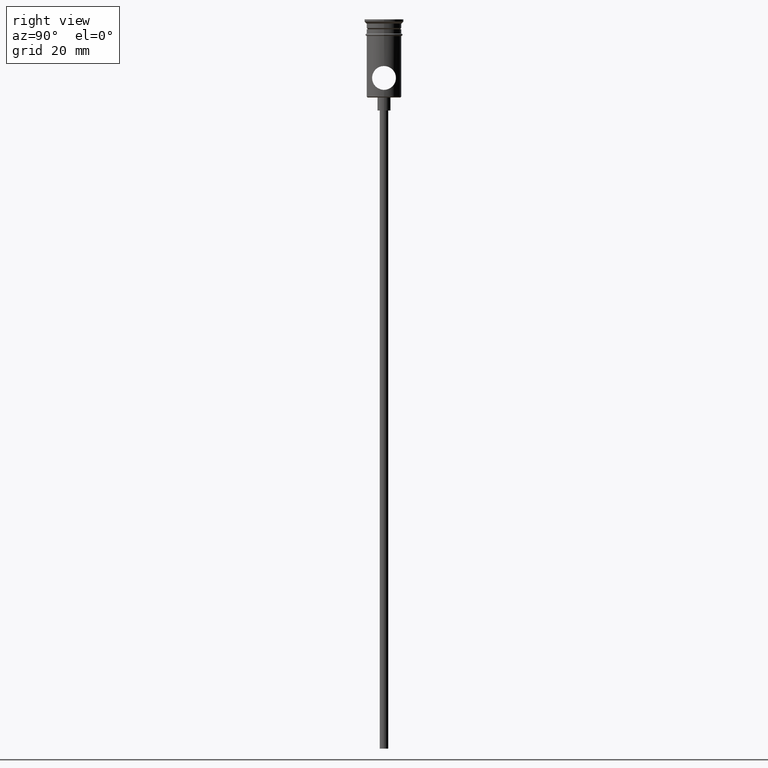
[diagram: clean part render]
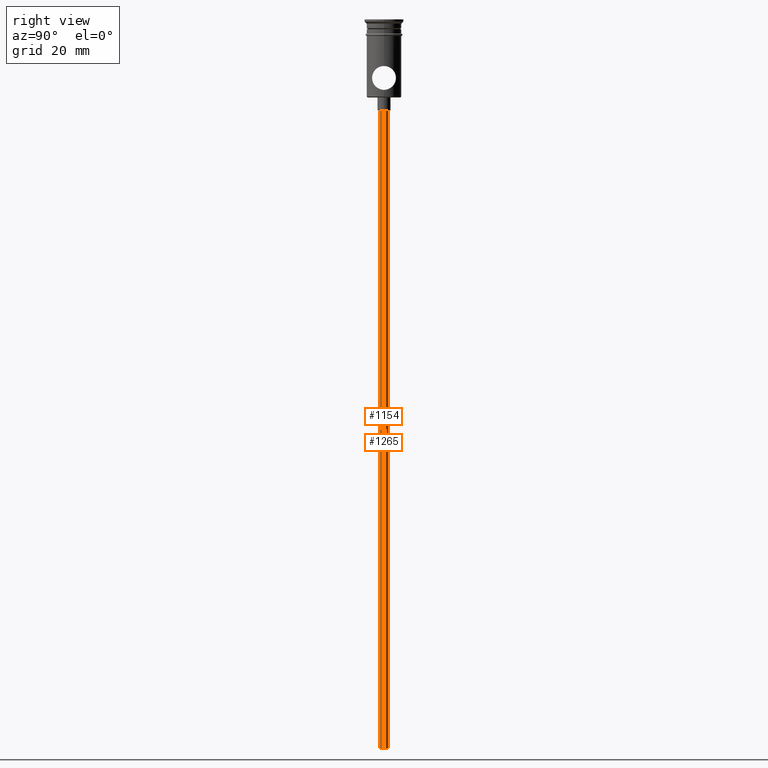
[diagram: same view with one multi-face feature highlighted, each face labeled with its STEP entity id]
A machine part, right view. The highlighted faces form ONE feature: a constant-radius fillet chain: 2 tangent blend faces with common blend radius 1 mm. The faces share edges in the B-rep.
Their STEP definitions:
[1] entity #1154 (Cylinder):
#107 = DIRECTION ( 'NONE',  ( 0.000000000000000000, 0.000000000000000000, -1.000000000000000000 ) ) ;
#109 = ORIENTED_EDGE ( 'NONE', *, *, #392, .F. ) ;
#122 = CARTESIAN_POINT ( 'NONE',  ( 0.9999999999999997780, 0.000000000000000000, -167.9999999999999716 ) ) ;
#127 = DIRECTION ( 'NONE',  ( -1.000000000000000000, 0.000000000000000000, 0.000000000000000000 ) ) ;
#171 = VERTEX_POINT ( 'NONE', #827 ) ;
#231 = EDGE_CURVE ( 'NONE', #171, #720, #348, .T. ) ;
#249 = FACE_OUTER_BOUND ( 'NONE', #577, .T. ) ;
#267 = EDGE_CURVE ( 'NONE', #1340, #906, #503, .T. ) ;
#348 = LINE ( 'NONE', #122, #1254 ) ;
#353 = DIRECTION ( 'NONE',  ( 1.000000000000000000, 0.000000000000000000, 0.000000000000000000 ) ) ;
#355 = DIRECTION ( 'NONE',  ( -1.000000000000000000, 0.000000000000000000, 0.000000000000000000 ) ) ;
#392 = EDGE_CURVE ( 'NONE', #171, #1340, #1176, .T. ) ;
#407 = AXIS2_PLACEMENT_3D ( 'NONE', #1067, #107, #127 ) ;
#503 = LINE ( 'NONE', #1038, #1058 ) ;
#577 = EDGE_LOOP ( 'NONE', ( #657, #109, #1196, #1155 ) ) ;
#600 = AXIS2_PLACEMENT_3D ( 'NONE', #902, #1345, #353 ) ;
#657 = ORIENTED_EDGE ( 'NONE', *, *, #267, .F. ) ;
#684 = EDGE_CURVE ( 'NONE', #720, #906, #865, .T. ) ;
#691 = CYLINDRICAL_SURFACE ( 'NONE', #600, 0.9999999999999997780 ) ;
#720 = VERTEX_POINT ( 'NONE', #904 ) ;
#827 = CARTESIAN_POINT ( 'NONE',  ( 0.9999999999999997780, 0.000000000000000000, -167.9999999999999716 ) ) ;
#862 = DIRECTION ( 'NONE',  ( -0.000000000000000000, -0.000000000000000000, 1.000000000000000000 ) ) ;
#865 = CIRCLE ( 'NONE', #1351, 0.9999999999999997780 ) ;
#902 = CARTESIAN_POINT ( 'NONE',  ( 0.000000000000000000, 0.000000000000000000, -167.9999999999999716 ) ) ;
#904 = CARTESIAN_POINT ( 'NONE',  ( 0.9999999999999997780, 0.000000000000000000, -20.99999999999999645 ) ) ;
#906 = VERTEX_POINT ( 'NONE', #1405 ) ;
#1038 = CARTESIAN_POINT ( 'NONE',  ( -0.9999999999999997780, 1.224646799147352961E-16, -167.9999999999999716 ) ) ;
#1058 = VECTOR ( 'NONE', #1373, 1000.000000000000000 ) ;
#1067 = CARTESIAN_POINT ( 'NONE',  ( 0.000000000000000000, 0.000000000000000000, -167.9999999999999716 ) ) ;
#1147 = CARTESIAN_POINT ( 'NONE',  ( -0.9999999999999997780, 1.224646799147352961E-16, -167.9999999999999716 ) ) ;
#1154 = ADVANCED_FACE ( 'NONE', ( #249 ), #691, .T. ) ;
#1155 = ORIENTED_EDGE ( 'NONE', *, *, #684, .T. ) ;
#1176 = CIRCLE ( 'NONE', #407, 0.9999999999999997780 ) ;
#1196 = ORIENTED_EDGE ( 'NONE', *, *, #231, .T. ) ;
#1244 = CARTESIAN_POINT ( 'NONE',  ( 0.000000000000000000, 0.000000000000000000, -20.99999999999999645 ) ) ;
#1254 = VECTOR ( 'NONE', #862, 1000.000000000000000 ) ;
#1340 = VERTEX_POINT ( 'NONE', #1147 ) ;
#1345 = DIRECTION ( 'NONE',  ( -0.000000000000000000, -0.000000000000000000, 1.000000000000000000 ) ) ;
#1351 = AXIS2_PLACEMENT_3D ( 'NONE', #1244, #1380, #355 ) ;
#1373 = DIRECTION ( 'NONE',  ( -0.000000000000000000, -0.000000000000000000, 1.000000000000000000 ) ) ;
#1380 = DIRECTION ( 'NONE',  ( 0.000000000000000000, 0.000000000000000000, -1.000000000000000000 ) ) ;
#1405 = CARTESIAN_POINT ( 'NONE',  ( -0.9999999999999997780, 1.224646799147352961E-16, -20.99999999999999645 ) ) ;
[2] entity #1265 (Cylinder):
#37 = CARTESIAN_POINT ( 'NONE',  ( 0.000000000000000000, 0.000000000000000000, -167.9999999999999716 ) ) ;
#106 = ORIENTED_EDGE ( 'NONE', *, *, #650, .F. ) ;
#122 = CARTESIAN_POINT ( 'NONE',  ( 0.9999999999999997780, 0.000000000000000000, -167.9999999999999716 ) ) ;
#163 = CARTESIAN_POINT ( 'NONE',  ( 0.000000000000000000, 0.000000000000000000, -20.99999999999999645 ) ) ;
#167 = FACE_OUTER_BOUND ( 'NONE', #612, .T. ) ;
#171 = VERTEX_POINT ( 'NONE', #827 ) ;
#178 = CARTESIAN_POINT ( 'NONE',  ( 0.000000000000000000, 0.000000000000000000, -167.9999999999999716 ) ) ;
#197 = ORIENTED_EDGE ( 'NONE', *, *, #504, .T. ) ;
#231 = EDGE_CURVE ( 'NONE', #171, #720, #348, .T. ) ;
#258 = DIRECTION ( 'NONE',  ( 0.000000000000000000, 0.000000000000000000, -1.000000000000000000 ) ) ;
#267 = EDGE_CURVE ( 'NONE', #1340, #906, #503, .T. ) ;
#301 = CIRCLE ( 'NONE', #947, 0.9999999999999997780 ) ;
#348 = LINE ( 'NONE', #122, #1254 ) ;
#419 = DIRECTION ( 'NONE',  ( -1.000000000000000000, 0.000000000000000000, 0.000000000000000000 ) ) ;
#503 = LINE ( 'NONE', #1038, #1058 ) ;
#504 = EDGE_CURVE ( 'NONE', #906, #720, #734, .T. ) ;
#553 = AXIS2_PLACEMENT_3D ( 'NONE', #178, #831, #1383 ) ;
#609 = DIRECTION ( 'NONE',  ( 0.000000000000000000, 0.000000000000000000, -1.000000000000000000 ) ) ;
#612 = EDGE_LOOP ( 'NONE', ( #106, #1344, #197, #1140 ) ) ;
#642 = AXIS2_PLACEMENT_3D ( 'NONE', #163, #609, #1116 ) ;
#650 = EDGE_CURVE ( 'NONE', #1340, #171, #301, .T. ) ;
#720 = VERTEX_POINT ( 'NONE', #904 ) ;
#734 = CIRCLE ( 'NONE', #642, 0.9999999999999997780 ) ;
#827 = CARTESIAN_POINT ( 'NONE',  ( 0.9999999999999997780, 0.000000000000000000, -167.9999999999999716 ) ) ;
#831 = DIRECTION ( 'NONE',  ( -0.000000000000000000, -0.000000000000000000, 1.000000000000000000 ) ) ;
#862 = DIRECTION ( 'NONE',  ( -0.000000000000000000, -0.000000000000000000, 1.000000000000000000 ) ) ;
#904 = CARTESIAN_POINT ( 'NONE',  ( 0.9999999999999997780, 0.000000000000000000, -20.99999999999999645 ) ) ;
#906 = VERTEX_POINT ( 'NONE', #1405 ) ;
#947 = AXIS2_PLACEMENT_3D ( 'NONE', #37, #258, #419 ) ;
#1019 = CYLINDRICAL_SURFACE ( 'NONE', #553, 0.9999999999999997780 ) ;
#1038 = CARTESIAN_POINT ( 'NONE',  ( -0.9999999999999997780, 1.224646799147352961E-16, -167.9999999999999716 ) ) ;
#1058 = VECTOR ( 'NONE', #1373, 1000.000000000000000 ) ;
#1116 = DIRECTION ( 'NONE',  ( -1.000000000000000000, 0.000000000000000000, 0.000000000000000000 ) ) ;
#1140 = ORIENTED_EDGE ( 'NONE', *, *, #231, .F. ) ;
#1147 = CARTESIAN_POINT ( 'NONE',  ( -0.9999999999999997780, 1.224646799147352961E-16, -167.9999999999999716 ) ) ;
#1254 = VECTOR ( 'NONE', #862, 1000.000000000000000 ) ;
#1265 = ADVANCED_FACE ( 'NONE', ( #167 ), #1019, .T. ) ;
#1340 = VERTEX_POINT ( 'NONE', #1147 ) ;
#1344 = ORIENTED_EDGE ( 'NONE', *, *, #267, .T. ) ;
#1373 = DIRECTION ( 'NONE',  ( -0.000000000000000000, -0.000000000000000000, 1.000000000000000000 ) ) ;
#1383 = DIRECTION ( 'NONE',  ( 1.000000000000000000, 0.000000000000000000, 0.000000000000000000 ) ) ;
#1405 = CARTESIAN_POINT ( 'NONE',  ( -0.9999999999999997780, 1.224646799147352961E-16, -20.99999999999999645 ) ) ;